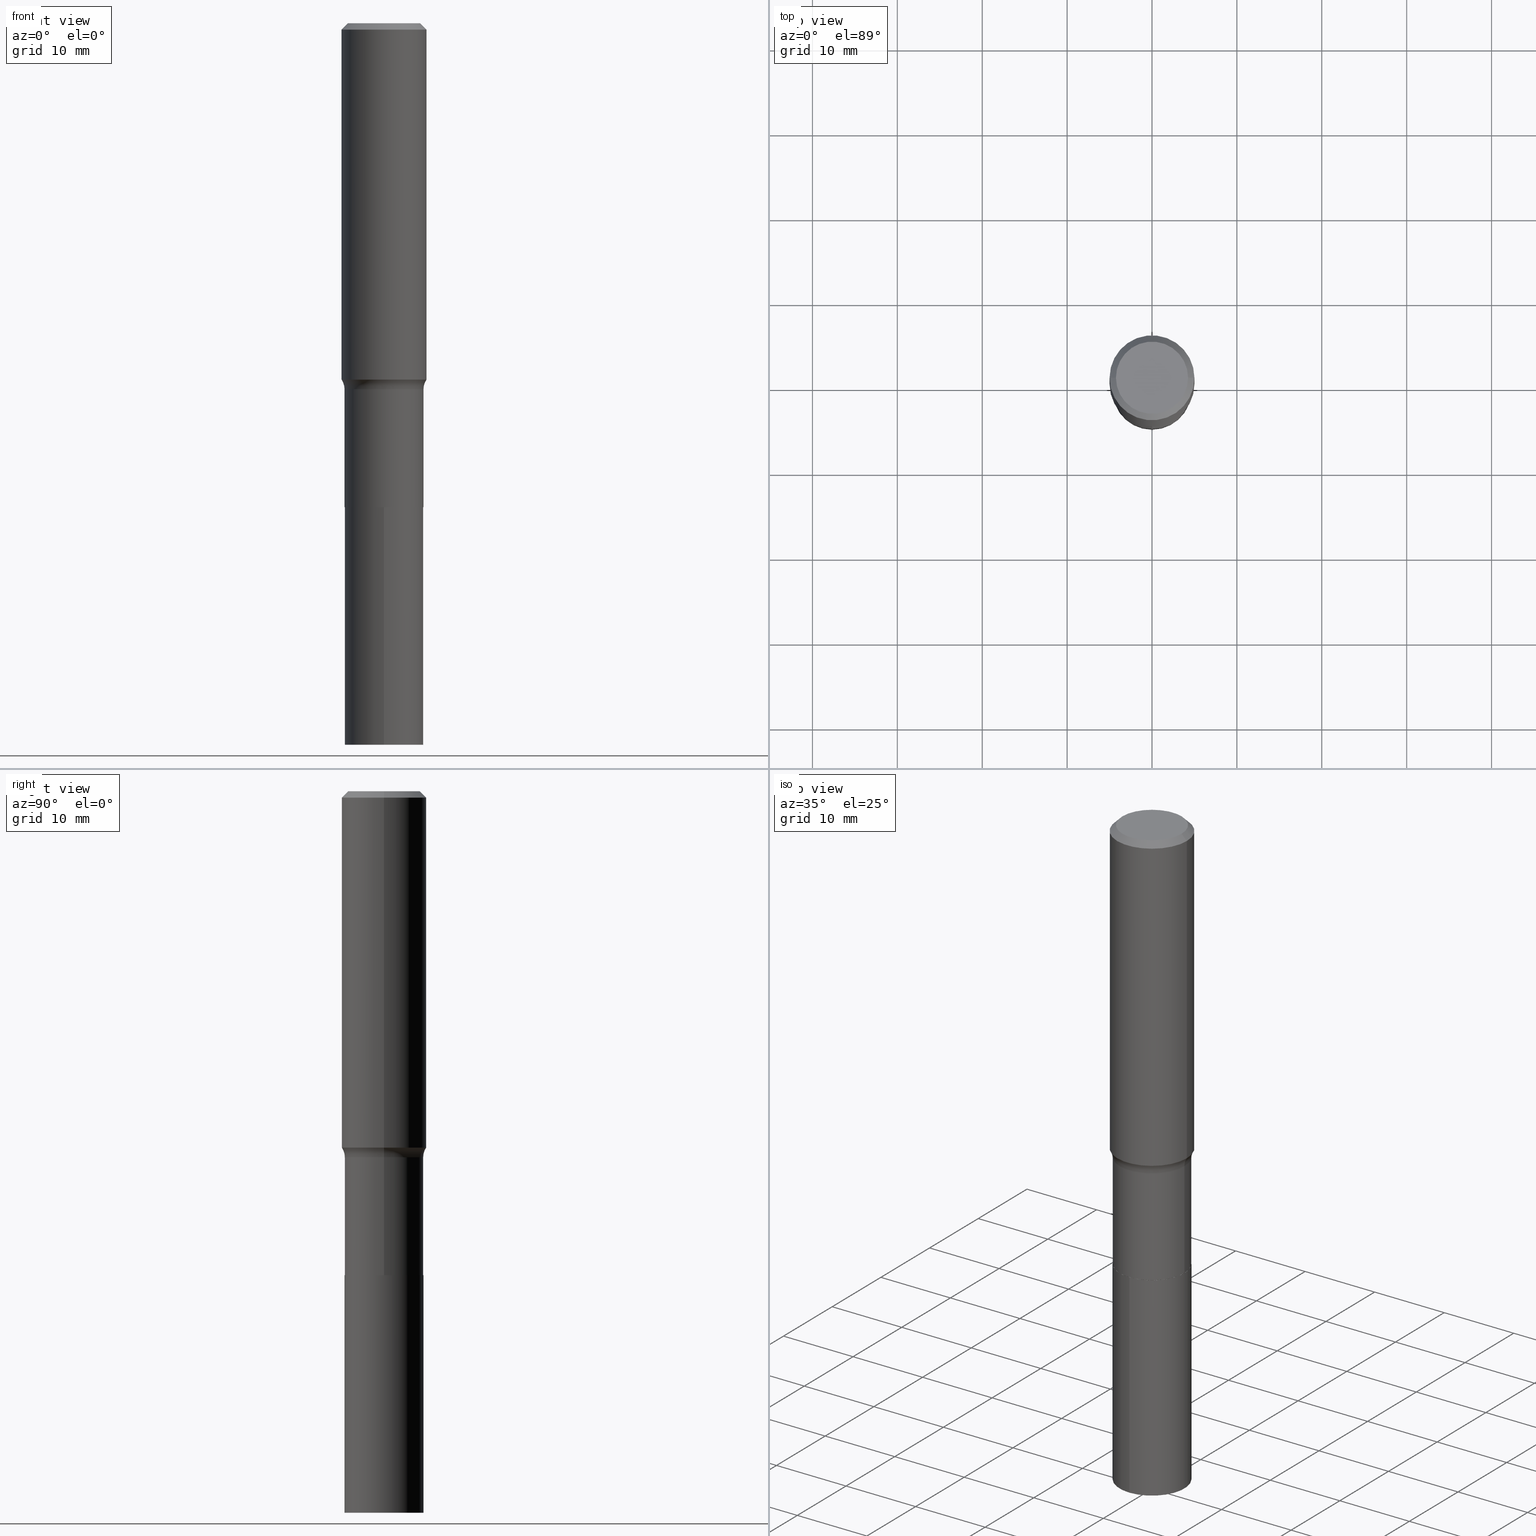
[diagram: canonical four-view strip — front | top / right | iso, engineering-drawing reading convention]
A machine part, canonical four-view strip (front | top / right | iso — engineering-drawing reading convention). The complete STEP part file that produces these views, byte-faithful:
ISO-10303-21;
HEADER;
FILE_DESCRIPTION (( 'STEP AP203' ),
    '1' );
FILE_NAME ('67770.STEP',
    '2024-04-19T16:23:47',
    ( '' ),
    ( '' ),
    'SwSTEP 2.0',
    'SolidWorks 2023',
    '' );
FILE_SCHEMA (( 'CONFIG_CONTROL_DESIGN' ));
ENDSEC;

DATA;
#1 = ADVANCED_FACE ( 'NONE', ( #424 ), #235, .T. ) ;
#2 = CC_DESIGN_PERSON_AND_ORGANIZATION_ASSIGNMENT ( #184, #268, ( #293 ) ) ;
#3 = ORIENTED_EDGE ( 'NONE', *, *, #71, .F. ) ;
#4 = ORIENTED_EDGE ( 'NONE', *, *, #312, .F. ) ;
#5 = APPROVAL_ROLE ( '' ) ;
#6 = AXIS2_PLACEMENT_3D ( 'NONE', #60, #119, #260 ) ;
#7 = VECTOR ( 'NONE', #77, 39.37007874015748143 ) ;
#8 = APPROVAL_PERSON_ORGANIZATION ( #334, #160, #407 ) ;
#9 = DIRECTION ( 'NONE',  ( -6.982962677686264344E-15, -1.000000000000000000, 2.984810700534567995E-15 ) ) ;
#10 = LINE ( 'NONE', #20, #75 ) ;
#11 = ORIENTED_EDGE ( 'NONE', *, *, #159, .F. ) ;
#12 = APPROVAL_STATUS ( 'not_yet_approved' ) ;
#13 = DIRECTION ( 'NONE',  ( -6.982962677686264344E-15, -1.000000000000000000, 2.984810700534567995E-15 ) ) ;
#14 = ORIENTED_EDGE ( 'NONE', *, *, #426, .F. ) ;
#15 = CIRCLE ( 'NONE', #283, 0.1968500000000000250 ) ;
#16 = CIRCLE ( 'NONE', #211, 0.1830499999999999905 ) ;
#17 = DIRECTION ( 'NONE',  ( -2.445468806185136597E-29, 3.491481338843145583E-15, 1.000000000000000000 ) ) ;
#18 = CARTESIAN_POINT ( 'NONE',  ( 5.488854735482538769E-29, -7.836629865033439543E-15, -2.244499999999999940 ) ) ;
#19 = EDGE_LOOP ( 'NONE', ( #444, #307, #166, #54 ) ) ;
#20 = CARTESIAN_POINT ( 'NONE',  ( -0.1968500000000001082, 1.398703375343757985E-15, -9.682923725166787881E-30 ) ) ;
#21 = EDGE_CURVE ( 'NONE', #339, #305, #265, .T. ) ;
#22 = AXIS2_PLACEMENT_3D ( 'NONE', #357, #430, #216 ) ;
#23 = EDGE_LOOP ( 'NONE', ( #123, #423 ) ) ;
#24 = EDGE_CURVE ( 'NONE', #389, #305, #15, .T. ) ;
#25 = CARTESIAN_POINT ( 'NONE',  ( 0.1830499999999999905, -1.278231318150470864E-15, 8.925841588094459454E-30 ) ) ;
#26 = EDGE_LOOP ( 'NONE', ( #87, #164, #370, #49 ) ) ;
#27 = LINE ( 'NONE', #416, #150 ) ;
#28 = PLANE ( 'NONE',  #224 ) ;
#29 = ORIENTED_EDGE ( 'NONE', *, *, #104, .F. ) ;
#30 = DIRECTION ( 'NONE',  ( -2.445468806185136877E-29, 3.491481338843145188E-15, 1.000000000000000000 ) ) ;
#31 = COORDINATED_UNIVERSAL_TIME_OFFSET ( 5, 0, .BEHIND. ) ;
#32 = APPLICATION_PROTOCOL_DEFINITION ( 'international standard', 'config_control_design', 1994, #107 ) ;
#33 = AXIS2_PLACEMENT_3D ( 'NONE', #86, #318, #315 ) ;
#34 = DIRECTION ( 'NONE',  ( -2.445425660691205372E-29, 3.491543125646143900E-15, 1.000000000000000000 ) ) ;
#35 = LINE ( 'NONE', #465, #47 ) ;
#36 = CARTESIAN_POINT ( 'NONE',  ( -0.1830500000000000183, -5.580362944783206907E-15, -2.243999999999999773 ) ) ;
#37 = ORIENTED_EDGE ( 'NONE', *, *, #365, .T. ) ;
#38 = DIRECTION ( 'NONE',  ( -2.445468806185136597E-29, 3.491481338843145583E-15, 1.000000000000000000 ) ) ;
#39 = DIRECTION ( 'NONE',  ( -6.982962677686264344E-15, -1.000000000000000000, 2.984810700534567995E-15 ) ) ;
#40 = SECURITY_CLASSIFICATION_LEVEL ( 'unclassified' ) ;
#41 = AXIS2_PLACEMENT_3D ( 'NONE', #179, #101, #147 ) ;
#42 = ADVANCED_FACE ( 'NONE', ( #152 ), #227, .F. ) ;
#43 = VERTEX_POINT ( 'NONE', #36 ) ;
#44 = DATE_AND_TIME ( #461, #112 ) ;
#45 = COORDINATED_UNIVERSAL_TIME_OFFSET ( 5, 0, .BEHIND. ) ;
#46 = CLOSED_SHELL ( 'NONE', ( #225, #42, #311, #232 ) ) ;
#47 = VECTOR ( 'NONE', #287, 39.37007874015748854 ) ;
#48 = PRODUCT_DEFINITION_FORMATION_WITH_SPECIFIED_SOURCE ( 'ANY', '', #117, .NOT_KNOWN. ) ;
#49 = ORIENTED_EDGE ( 'NONE', *, *, #343, .T. ) ;
#50 = CARTESIAN_POINT ( 'NONE',  ( 0.1968500000000001915, -7.144907158398071295E-15, -1.652682742737339394 ) ) ;
#51 = FACE_OUTER_BOUND ( 'NONE', #355, .T. ) ;
#52 = DIRECTION ( 'NONE',  ( 1.000000000000000000, -6.982962677686267499E-15, 4.876294436782262290E-29 ) ) ;
#53 =( LENGTH_UNIT ( ) NAMED_UNIT ( * ) SI_UNIT ( $, .METRE. ) );
#54 = ORIENTED_EDGE ( 'NONE', *, *, #263, .F. ) ;
#55 = LINE ( 'NONE', #120, #7 ) ;
#56 = EDGE_CURVE ( 'NONE', #348, #288, #218, .T. ) ;
#57 = DIRECTION ( 'NONE',  ( 2.438088387897960049E-29, -3.491481338843145188E-15, -1.000000000000000000 ) ) ;
#58 = AXIS2_PLACEMENT_3D ( 'NONE', #127, #79, #134 ) ;
#59 = EDGE_CURVE ( 'NONE', #43, #462, #386, .T. ) ;
#60 = CARTESIAN_POINT ( 'NONE',  ( 7.220858017463206858E-31, -1.030947152326916240E-16, -0.02952750000000018207 ) ) ;
#61 = CARTESIAN_POINT ( 'NONE',  ( 0.1673224999999999851, -1.300749711163072397E-15, 4.096137381456741925E-18 ) ) ;
#62 = CIRCLE ( 'NONE', #210, 0.1968500000000002192 ) ;
#63 = CONICAL_SURFACE ( 'NONE', #302, 0.1825499999999999623, 0.7853981633975849475 ) ;
#64 = DIRECTION ( 'NONE',  ( -2.445425660691205372E-29, 3.491543125646143900E-15, 1.000000000000000000 ) ) ;
#65 = DIRECTION ( 'NONE',  ( -2.445468806185136597E-29, 3.491481338843145583E-15, 1.000000000000000000 ) ) ;
#66 = CIRCLE ( 'NONE', #41, 0.1673224999999999851 ) ;
#67 = ORIENTED_EDGE ( 'NONE', *, *, #171, .T. ) ;
#68 = DIRECTION ( 'NONE',  ( -2.445425660691205372E-29, 3.491543125646143900E-15, 1.000000000000000000 ) ) ;
#69 = CARTESIAN_POINT ( 'NONE',  ( 7.220858017463206858E-31, -1.030947152326916240E-16, -0.02952750000000018207 ) ) ;
#70 = ORIENTED_EDGE ( 'NONE', *, *, #171, .F. ) ;
#71 = EDGE_CURVE ( 'NONE', #348, #84, #353, .T. ) ;
#72 = PRODUCT_DEFINITION ( 'UNKNOWN', '', #48, #108 ) ;
#73 = DIRECTION ( 'NONE',  ( -2.445468806185136597E-29, 3.491481338843145583E-15, 1.000000000000000000 ) ) ;
#74 = UNCERTAINTY_MEASURE_WITH_UNIT (LENGTH_MEASURE( 1.000000000000000082E-05 ), #350, 'distance_accuracy_value', 'NONE');
#75 = VECTOR ( 'NONE', #415, 39.37007874015748143 ) ;
#76 = DIRECTION ( 'NONE',  ( 1.000000000000000000, 0.000000000000000000, 0.000000000000000000 ) ) ;
#77 = DIRECTION ( 'NONE',  ( -2.445468806185136877E-29, 3.491481338843145188E-15, 1.000000000000000000 ) ) ;
#78 = EDGE_LOOP ( 'NONE', ( #400, #413, #445, #198 ) ) ;
#79 = DIRECTION ( 'NONE',  ( -2.445468806185136597E-29, 3.491481338843145583E-15, 1.000000000000000000 ) ) ;
#80 = VECTOR ( 'NONE', #290, 39.37007874015748143 ) ;
#81 = ORIENTED_EDGE ( 'NONE', *, *, #426, .T. ) ;
#82 = DIRECTION ( 'NONE',  ( 1.000000000000000000, -6.982962677686267499E-15, 4.883557194083112901E-29 ) ) ;
#83 = EDGE_CURVE ( 'NONE', #243, #233, #301, .T. ) ;
#84 = VERTEX_POINT ( 'NONE', #276 ) ;
#85 = CC_DESIGN_PERSON_AND_ORGANIZATION_ASSIGNMENT ( #405, #228, ( #48 ) ) ;
#86 = CARTESIAN_POINT ( 'NONE',  ( 7.220858017463206858E-31, -1.030947152326916240E-16, -0.02952750000000018207 ) ) ;
#87 = ORIENTED_EDGE ( 'NONE', *, *, #356, .F. ) ;
#88 = DIRECTION ( 'NONE',  ( -6.982962677686264344E-15, -1.000000000000000000, 2.984810700534567995E-15 ) ) ;
#89 = DIRECTION ( 'NONE',  ( -2.445468806185136597E-29, 3.491481338843145583E-15, 1.000000000000000000 ) ) ;
#90 = FACE_OUTER_BOUND ( 'NONE', #190, .T. ) ;
#91 = DIRECTION ( 'NONE',  ( 1.000000000000000000, -6.982962677686264344E-15, 0.000000000000000000 ) ) ;
#92 = ORIENTED_EDGE ( 'NONE', *, *, #459, .T. ) ;
#93 = CARTESIAN_POINT ( 'NONE',  ( 0.000000000000000000, 0.000000000000000000, 0.000000000000000000 ) ) ;
#94 = AXIS2_PLACEMENT_3D ( 'NONE', #432, #437, #295 ) ;
#95 = ORGANIZATION ( 'UNSPECIFIED', 'UNSPECIFIED', '' ) ;
#96 = FACE_OUTER_BOUND ( 'NONE', #278, .T. ) ;
#97 = COORDINATED_UNIVERSAL_TIME_OFFSET ( 5, 0, .BEHIND. ) ;
#98 = DIRECTION ( 'NONE',  ( -1.000000000000000000, 7.105427357601001859E-15, 0.000000000000000000 ) ) ;
#99 = DIRECTION ( 'NONE',  ( -2.445425660691205372E-29, 3.491543125646143900E-15, 1.000000000000000000 ) ) ;
#100 = AXIS2_PLACEMENT_3D ( 'NONE', #367, #215, #182 ) ;
#101 = DIRECTION ( 'NONE',  ( -2.445468806185136597E-29, 3.491481338843145583E-15, 1.000000000000000000 ) ) ;
#102 = ADVANCED_FACE ( 'NONE', ( #135 ), #448, .T. ) ;
#103 = DIRECTION ( 'NONE',  ( -2.445425660691205372E-29, 3.491543125646143900E-15, 1.000000000000000000 ) ) ;
#104 = EDGE_CURVE ( 'NONE', #84, #348, #442, .T. ) ;
#105 = CARTESIAN_POINT ( 'NONE',  ( 0.1830499999999999350, -7.205370038970595453E-15, -1.697599999999999998 ) ) ;
#106 = APPROVAL_STATUS ( 'not_yet_approved' ) ;
#107 = APPLICATION_CONTEXT ( 'configuration controlled 3d designs of mechanical parts and assemblies' ) ;
#108 = DESIGN_CONTEXT ( 'detailed design', #107, 'design' ) ;
#109 = DIRECTION ( 'NONE',  ( 0.7071067811865455743, -7.319954787623248157E-15, -0.7071067811865493491 ) ) ;
#110 = DIRECTION ( 'NONE',  ( 1.000000000000000000, -6.982962677686267499E-15, 4.883557194083112901E-29 ) ) ;
#111 = AXIS2_PLACEMENT_3D ( 'NONE', #323, #64, #418 ) ;
#112 = LOCAL_TIME ( 12, 23, 47.00000000000000000, #214 ) ;
#113 = CYLINDRICAL_SURFACE ( 'NONE', #58, 0.1830499999999999905 ) ;
#114 = ADVANCED_FACE ( 'NONE', ( #191 ), #163, .F. ) ;
#115 = EDGE_LOOP ( 'NONE', ( #29, #3 ) ) ;
#116 = APPROVAL_DATE_TIME ( #254, #250 ) ;
#117 = PRODUCT ( '67770', '67770', '', ( #199 ) ) ;
#118 = DIRECTION ( 'NONE',  ( 0.000000000000000000, 0.000000000000000000, 1.000000000000000000 ) ) ;
#119 = DIRECTION ( 'NONE',  ( 2.445468806185136597E-29, -3.491481338843145583E-15, -1.000000000000000000 ) ) ;
#120 = CARTESIAN_POINT ( 'NONE',  ( -0.1830499999999999905, 1.300648477808863323E-15, -9.004110682711603988E-30 ) ) ;
#121 = DATE_AND_TIME ( #197, #258 ) ;
#122 = CLOSED_SHELL ( 'NONE', ( #460, #1, #148, #114, #282, #446, #425, #102, #186, #332, #188, #264 ) ) ;
#123 = ORIENTED_EDGE ( 'NONE', *, *, #395, .T. ) ;
#124 = CIRCLE ( 'NONE', #354, 0.1830499999999999905 ) ;
#125 = VERTEX_POINT ( 'NONE', #151 ) ;
#126 = CARTESIAN_POINT ( 'NONE',  ( 0.000000000000000000, 0.000000000000000000, 0.000000000000000000 ) ) ;
#127 = CARTESIAN_POINT ( 'NONE',  ( 0.000000000000000000, 0.000000000000000000, 0.000000000000000000 ) ) ;
#128 = FACE_OUTER_BOUND ( 'NONE', #201, .T. ) ;
#129 = CIRCLE ( 'NONE', #450, 0.1830500000000000183 ) ;
#130 = PRODUCT_RELATED_PRODUCT_CATEGORY ( 'detail', '', ( #117 ) ) ;
#131 = AXIS2_PLACEMENT_3D ( 'NONE', #169, #240, #52 ) ;
#132 = EDGE_CURVE ( 'NONE', #174, #458, #62, .T. ) ;
#133 = EDGE_LOOP ( 'NONE', ( #14, #382, #219, #153 ) ) ;
#134 = DIRECTION ( 'NONE',  ( 1.000000000000000000, -6.982962677686265922E-15, 4.876176775795935232E-29 ) ) ;
#135 = FACE_OUTER_BOUND ( 'NONE', #189, .T. ) ;
#136 = DIRECTION ( 'NONE',  ( 1.000000000000000000, -6.982962677686265922E-15, 4.876176775795935232E-29 ) ) ;
#137 = CIRCLE ( 'NONE', #245, 0.1830499999999999350 ) ;
#138 = ORIENTED_EDGE ( 'NONE', *, *, #440, .F. ) ;
#139 = APPROVAL_STATUS ( 'not_yet_approved' ) ;
#140 = DIRECTION ( 'NONE',  ( -1.000000000000000000, 6.982962677686265922E-15, -4.876176775795935793E-29 ) ) ;
#141 = FACE_OUTER_BOUND ( 'NONE', #78, .T. ) ;
#142 = ORIENTED_EDGE ( 'NONE', *, *, #273, .T. ) ;
#143 = DIRECTION ( 'NONE',  ( 1.000000000000000000, -6.982962677686262766E-15, 0.000000000000000000 ) ) ;
#144 = VERTEX_POINT ( 'NONE', #300 ) ;
#145 = LINE ( 'NONE', #222, #80 ) ;
#146 = DIRECTION ( 'NONE',  ( -6.982962677686264344E-15, -1.000000000000000000, 2.984810700534567995E-15 ) ) ;
#147 = DIRECTION ( 'NONE',  ( 1.000000000000000000, -6.982962677686267499E-15, 4.876294436782262290E-29 ) ) ;
#148 = ADVANCED_FACE ( 'NONE', ( #96 ), #346, .T. ) ;
#149 = CARTESIAN_POINT ( 'NONE',  ( 4.151427845379887216E-29, -5.927138720820123997E-15, -1.697599999999999998 ) ) ;
#150 = VECTOR ( 'NONE', #209, 39.37007874015748143 ) ;
#151 = CARTESIAN_POINT ( 'NONE',  ( 0.1825499999999999623, -9.111369701845066414E-15, -2.244499999999999940 ) ) ;
#152 = FACE_OUTER_BOUND ( 'NONE', #115, .T. ) ;
#153 = ORIENTED_EDGE ( 'NONE', *, *, #213, .F. ) ;
#154 = ORIENTED_EDGE ( 'NONE', *, *, #194, .T. ) ;
#155 = AXIS2_PLACEMENT_3D ( 'NONE', #402, #68, #39 ) ;
#156 = MANIFOLD_SOLID_BREP ( 'Body-Move/Copy2[2]', #122 ) ;
#157 = AXIS2_PLACEMENT_3D ( 'NONE', #435, #257, #9 ) ;
#158 = PERSON_AND_ORGANIZATION ( #241, #95 ) ;
#159 = EDGE_CURVE ( 'NONE', #462, #43, #129, .T. ) ;
#160 = APPROVAL ( #12, 'UNSPECIFIED' ) ;
#161 =( NAMED_UNIT ( * ) PLANE_ANGLE_UNIT ( ) SI_UNIT ( $, .RADIAN. ) );
#162 = ORIENTED_EDGE ( 'NONE', *, *, #104, .T. ) ;
#163 = TOROIDAL_SURFACE ( 'NONE', #266, 0.2630499999999999505, 0.07999999999999996003 ) ;
#164 = ORIENTED_EDGE ( 'NONE', *, *, #132, .F. ) ;
#165 = DIRECTION ( 'NONE',  ( -2.445468806185136597E-29, 3.491481338843145583E-15, 1.000000000000000000 ) ) ;
#166 = ORIENTED_EDGE ( 'NONE', *, *, #83, .T. ) ;
#167 = APPROVAL_ROLE ( '' ) ;
#168 = VECTOR ( 'NONE', #294, 39.37007874015748143 ) ;
#169 = CARTESIAN_POINT ( 'NONE',  ( -1.001697619218021790E-46, 1.430158722866389718E-32, 4.096137381448108366E-18 ) ) ;
#170 = ORIENTED_EDGE ( 'NONE', *, *, #275, .F. ) ;
#171 = EDGE_CURVE ( 'NONE', #414, #125, #412, .T. ) ;
#172 = CC_DESIGN_DATE_AND_TIME_ASSIGNMENT ( #195, #374, ( #72 ) ) ;
#173 = DATE_TIME_ROLE ( 'classification_date' ) ;
#174 = VERTEX_POINT ( 'NONE', #50 ) ;
#175 = ORIENTED_EDGE ( 'NONE', *, *, #459, .F. ) ;
#176 = CARTESIAN_POINT ( 'NONE',  ( 0.1968500000000000250, -1.477690918335233294E-15, -0.02952750000000018207 ) ) ;
#177 = AXIS2_PLACEMENT_3D ( 'NONE', #289, #456, #136 ) ;
#178 = LOCAL_TIME ( 12, 23, 47.00000000000000000, #375 ) ;
#179 = CARTESIAN_POINT ( 'NONE',  ( -1.001697619218021790E-46, 1.430158722866389718E-32, 4.096137381448108366E-18 ) ) ;
#180 = CYLINDRICAL_SURFACE ( 'NONE', #157, 0.1830499999999999905 ) ;
#181 = FACE_OUTER_BOUND ( 'NONE', #322, .T. ) ;
#182 = DIRECTION ( 'NONE',  ( 1.000000000000000000, -6.982962677686264344E-15, 0.000000000000000000 ) ) ;
#183 = LENGTH_MEASURE_WITH_UNIT ( LENGTH_MEASURE( 0.02539999999999999897 ), #53 );
#184 = PERSON_AND_ORGANIZATION ( #241, #95 ) ;
#185 = DIRECTION ( 'NONE',  ( 1.000000000000000000, -6.982962677686264344E-15, 0.000000000000000000 ) ) ;
#186 = ADVANCED_FACE ( 'NONE', ( #128 ), #420, .T. ) ;
#187 = APPROVAL_DATE_TIME ( #44, #249 ) ;
#188 = ADVANCED_FACE ( 'NONE', ( #51 ), #200, .F. ) ;
#189 = EDGE_LOOP ( 'NONE', ( #454, #397, #345, #331 ) ) ;
#190 = EDGE_LOOP ( 'NONE', ( #142, #81 ) ) ;
#191 = FACE_OUTER_BOUND ( 'NONE', #19, .T. ) ;
#192 = CIRCLE ( 'NONE', #131, 0.1673224999999999851 ) ;
#193 = CC_DESIGN_APPROVAL ( #160, ( #48 ) ) ;
#194 = EDGE_CURVE ( 'NONE', #125, #462, #145, .T. ) ;
#195 = DATE_AND_TIME ( #341, #451 ) ;
#196 = ORIENTED_EDGE ( 'NONE', *, *, #59, .F. ) ;
#197 = CALENDAR_DATE ( 2024, 19, 4 ) ;
#198 = ORIENTED_EDGE ( 'NONE', *, *, #83, .F. ) ;
#199 = MECHANICAL_CONTEXT ( 'NONE', #207, 'mechanical' ) ;
#200 = PLANE ( 'NONE',  #338 ) ;
#201 = EDGE_LOOP ( 'NONE', ( #438, #274, #352, #340 ) ) ;
#202 = CARTESIAN_POINT ( 'NONE',  ( 5.488854735482538769E-29, -7.836629865033439543E-15, -2.244499999999999940 ) ) ;
#203 = AXIS2_PLACEMENT_3D ( 'NONE', #208, #234, #239 ) ;
#204 = DIRECTION ( 'NONE',  ( -2.445468806185136597E-29, 3.491481338843145583E-15, 1.000000000000000000 ) ) ;
#205 = CARTESIAN_POINT ( 'NONE',  ( 5.488854735482538769E-29, -7.836629865033439543E-15, -2.244499999999999940 ) ) ;
#206 = PLANE ( 'NONE',  #284 ) ;
#207 = APPLICATION_CONTEXT ( 'configuration controlled 3d designs of mechanical parts and assemblies' ) ;
#208 = CARTESIAN_POINT ( 'NONE',  ( 7.220858017463206858E-31, -1.030947152326916240E-16, -0.02952750000000018207 ) ) ;
#209 = DIRECTION ( 'NONE',  ( -2.445425660691205372E-29, 3.491543125646143900E-15, 1.000000000000000000 ) ) ;
#210 = AXIS2_PLACEMENT_3D ( 'NONE', #366, #38, #466 ) ;
#211 = AXIS2_PLACEMENT_3D ( 'NONE', #202, #99, #13 ) ;
#212 = CC_DESIGN_PERSON_AND_ORGANIZATION_ASSIGNMENT ( #303, #369, ( #48 ) ) ;
#213 = EDGE_CURVE ( 'NONE', #144, #389, #35, .T. ) ;
#214 = COORDINATED_UNIVERSAL_TIME_OFFSET ( 5, 0, .BEHIND. ) ;
#215 = DIRECTION ( 'NONE',  ( -2.445468806185136597E-29, 3.491481338843145583E-15, 1.000000000000000000 ) ) ;
#216 = DIRECTION ( 'NONE',  ( 1.000000000000000000, -6.982962677686264344E-15, 0.000000000000000000 ) ) ;
#217 = CC_DESIGN_APPROVAL ( #250, ( #72 ) ) ;
#218 = LINE ( 'NONE', #220, #308 ) ;
#219 = ORIENTED_EDGE ( 'NONE', *, *, #411, .T. ) ;
#220 = CARTESIAN_POINT ( 'NONE',  ( 1.300648477808917754E-15, 0.1830499999999921634, -2.244500000000000384 ) ) ;
#221 = PRODUCT_DEFINITION_SHAPE ( 'NONE', 'NONE',  #72 ) ;
#222 = CARTESIAN_POINT ( 'NONE',  ( 0.1825499999999999623, -9.111369701845066414E-15, -2.244499999999999940 ) ) ;
#223 = APPROVAL_DATE_TIME ( #121, #160 ) ;
#224 = AXIS2_PLACEMENT_3D ( 'NONE', #251, #325, #394 ) ;
#225 = ADVANCED_FACE ( 'NONE', ( #431 ), #180, .T. ) ;
#226 = FACE_OUTER_BOUND ( 'NONE', #379, .T. ) ;
#227 = PLANE ( 'NONE',  #94 ) ;
#228 = PERSON_AND_ORGANIZATION_ROLE ( 'creator' ) ;
#229 = EDGE_LOOP ( 'NONE', ( #441, #408, #391, #248 ) ) ;
#230 = VERTEX_POINT ( 'NONE', #433 ) ;
#231 = DIRECTION ( 'NONE',  ( -2.445468806185136597E-29, 3.491481338843145583E-15, 1.000000000000000000 ) ) ;
#232 = ADVANCED_FACE ( 'NONE', ( #362 ), #28, .F. ) ;
#233 = VERTEX_POINT ( 'NONE', #105 ) ;
#234 = DIRECTION ( 'NONE',  ( 2.445468806185136597E-29, -3.491481338843145583E-15, -1.000000000000000000 ) ) ;
#235 = CONICAL_SURFACE ( 'NONE', #6, 0.1968500000000000250, 0.7853981633974456145 ) ;
#236 = PERSON_AND_ORGANIZATION_ROLE ( 'creator' ) ;
#237 = AXIS2_PLACEMENT_3D ( 'NONE', #421, #65, #185 ) ;
#238 = DIRECTION ( 'NONE',  ( -2.445425660691205372E-29, 3.491543125646143900E-15, 1.000000000000000000 ) ) ;
#239 = DIRECTION ( 'NONE',  ( -1.000000000000000000, 6.982962677686265922E-15, 0.000000000000000000 ) ) ;
#240 = DIRECTION ( 'NONE',  ( -2.445468806185136597E-29, 3.491481338843145583E-15, 1.000000000000000000 ) ) ;
#241 = PERSON ( 'UNSPECIFIED', 'UNSPECIFIED', 'UNSPECIFIED', ('UNSPECIFIED'), ('UNSPECIFIED'), ('UNSPECIFIED') ) ;
#242 = ORIENTED_EDGE ( 'NONE', *, *, #194, .F. ) ;
#243 = VERTEX_POINT ( 'NONE', #252 ) ;
#244 = CARTESIAN_POINT ( 'NONE',  ( -5.008488096090108951E-47, 7.150793614331948590E-33, 2.048068690724054183E-18 ) ) ;
#245 = AXIS2_PLACEMENT_3D ( 'NONE', #349, #204, #388 ) ;
#246 = DIRECTION ( 'NONE',  ( 1.000000000000000000, -6.982962677686265922E-15, 0.000000000000000000 ) ) ;
#247 = CARTESIAN_POINT ( 'NONE',  ( -0.1825499999999999623, -6.536884873729265523E-15, -2.244499999999999940 ) ) ;
#248 = ORIENTED_EDGE ( 'NONE', *, *, #297, .F. ) ;
#249 = APPROVAL ( #106, 'UNSPECIFIED' ) ;
#250 = APPROVAL ( #139, 'UNSPECIFIED' ) ;
#251 = CARTESIAN_POINT ( 'NONE',  ( 5.488854735482538769E-29, -7.836629865033439543E-15, -2.244499999999999940 ) ) ;
#252 = CARTESIAN_POINT ( 'NONE',  ( -0.1830499999999999350, -5.580362944783206907E-15, -1.697599999999999998 ) ) ;
#253 = ORIENTED_EDGE ( 'NONE', *, *, #343, .F. ) ;
#254 = DATE_AND_TIME ( #390, #429 ) ;
#255 = CARTESIAN_POINT ( 'NONE',  ( -0.1825499999999999623, -6.539534100903376724E-15, -2.244499999999999940 ) ) ;
#256 = AXIS2_PLACEMENT_3D ( 'NONE', #399, #328, #143 ) ;
#257 = DIRECTION ( 'NONE',  ( -2.445425660691205372E-29, 3.491543125646143900E-15, 1.000000000000000000 ) ) ;
#258 = LOCAL_TIME ( 12, 23, 47.00000000000000000, #31 ) ;
#259 = CARTESIAN_POINT ( 'NONE',  ( 4.151427845379887216E-29, -5.927138720820123997E-15, -1.697599999999999998 ) ) ;
#260 = DIRECTION ( 'NONE',  ( -1.000000000000000000, 6.982962677686265922E-15, 0.000000000000000000 ) ) ;
#261 = ORIENTED_EDGE ( 'NONE', *, *, #159, .T. ) ;
#262 = ORIENTED_EDGE ( 'NONE', *, *, #395, .F. ) ;
#263 = EDGE_CURVE ( 'NONE', #174, #233, #271, .T. ) ;
#264 = ADVANCED_FACE ( 'NONE', ( #285 ), #292, .T. ) ;
#265 = LINE ( 'NONE', #335, #319 ) ;
#266 = AXIS2_PLACEMENT_3D ( 'NONE', #259, #306, #110 ) ;
#267 = DIRECTION ( 'NONE',  ( -2.445468806185136597E-29, 3.491481338843145583E-15, 1.000000000000000000 ) ) ;
#268 = PERSON_AND_ORGANIZATION_ROLE ( 'classification_officer' ) ;
#269 = ORIENTED_EDGE ( 'NONE', *, *, #275, .T. ) ;
#270 = CARTESIAN_POINT ( 'NONE',  ( 4.151427845379887216E-29, -5.927138720820123997E-15, -1.697599999999999998 ) ) ;
#271 = CIRCLE ( 'NONE', #256, 0.07999999999999996003 ) ;
#272 = ORIENTED_EDGE ( 'NONE', *, *, #298, .F. ) ;
#273 = EDGE_CURVE ( 'NONE', #144, #339, #66, .T. ) ;
#274 = ORIENTED_EDGE ( 'NONE', *, *, #273, .F. ) ;
#275 = EDGE_CURVE ( 'NONE', #414, #43, #436, .T. ) ;
#276 = CARTESIAN_POINT ( 'NONE',  ( -1.278231318150389020E-15, -0.1830500000000116478, -3.346499999999999364 ) ) ;
#277 = CARTESIAN_POINT ( 'NONE',  ( 1.300648477808931165E-15, 0.1830499999999883054, -3.346500000000000696 ) ) ;
#278 = EDGE_LOOP ( 'NONE', ( #383, #351, #377, #138 ) ) ;
#279 = CARTESIAN_POINT ( 'NONE',  ( -0.1968500000000001915, -4.371607579951768743E-15, -1.652682742737339394 ) ) ;
#280 = DIRECTION ( 'NONE',  ( -2.445468806185136597E-29, 3.491481338843145583E-15, 1.000000000000000000 ) ) ;
#281 = CARTESIAN_POINT ( 'NONE',  ( -0.1968500000000000250, -1.537999459920351518E-15, -0.02952750000000018207 ) ) ;
#282 = ADVANCED_FACE ( 'NONE', ( #181 ), #113, .T. ) ;
#283 = AXIS2_PLACEMENT_3D ( 'NONE', #69, #73, #468 ) ;
#284 = AXIS2_PLACEMENT_3D ( 'NONE', #244, #57, #140 ) ;
#285 = FACE_OUTER_BOUND ( 'NONE', #296, .T. ) ;
#286 = CARTESIAN_POINT ( 'NONE',  ( 5.488854735482538769E-29, -7.836629865033439543E-15, -2.244499999999999940 ) ) ;
#287 = DIRECTION ( 'NONE',  ( -0.7071067811865455743, 2.468850131082236945E-15, -0.7071067811865493491 ) ) ;
#288 = VERTEX_POINT ( 'NONE', #452 ) ;
#289 = CARTESIAN_POINT ( 'NONE',  ( 0.000000000000000000, 0.000000000000000000, 0.000000000000000000 ) ) ;
#290 = DIRECTION ( 'NONE',  ( 0.7071067811866441621, -2.468850131083269169E-15, 0.7071067811864508723 ) ) ;
#291 = DIRECTION ( 'NONE',  ( 1.000000000000000000, -6.982962677686264344E-15, 0.000000000000000000 ) ) ;
#292 = CONICAL_SURFACE ( 'NONE', #22, 0.1825499999999999623, 0.7853981633975849475 ) ;
#293 = SECURITY_CLASSIFICATION ( '', '', #40 ) ;
#294 = DIRECTION ( 'NONE',  ( -2.445468806185136877E-29, 3.491481338843145188E-15, 1.000000000000000000 ) ) ;
#295 = DIRECTION ( 'NONE',  ( -6.982962677686265922E-15, -1.000000000000000000, 3.491543125646143900E-15 ) ) ;
#296 = EDGE_LOOP ( 'NONE', ( #170, #67, #154, #196 ) ) ;
#297 = EDGE_CURVE ( 'NONE', #288, #230, #124, .T. ) ;
#298 = EDGE_CURVE ( 'NONE', #462, #233, #384, .T. ) ;
#299 = CARTESIAN_POINT ( 'NONE',  ( 0.000000000000000000, 0.000000000000000000, 0.000000000000000000 ) ) ;
#300 = CARTESIAN_POINT ( 'NONE',  ( -0.1673224999999999851, 1.219954130253505263E-15, 4.096137381439757534E-18 ) ) ;
#301 = CIRCLE ( 'NONE', #371, 0.1830499999999999350 ) ;
#302 = AXIS2_PLACEMENT_3D ( 'NONE', #329, #267, #291 ) ;
#303 = PERSON_AND_ORGANIZATION ( #241, #95 ) ;
#304 = SHAPE_DEFINITION_REPRESENTATION ( #221, #336 ) ;
#305 = VERTEX_POINT ( 'NONE', #176 ) ;
#306 = DIRECTION ( 'NONE',  ( -2.445468806185136597E-29, 3.491481338843145583E-15, 1.000000000000000000 ) ) ;
#307 = ORIENTED_EDGE ( 'NONE', *, *, #356, .T. ) ;
#308 = VECTOR ( 'NONE', #103, 39.37007874015748143 ) ;
#309 = DIRECTION ( 'NONE',  ( 1.000000000000000000, -6.982962677686266711E-15, 4.876176775795935793E-29 ) ) ;
#310 = CIRCLE ( 'NONE', #326, 0.1968500000000002192 ) ;
#311 = ADVANCED_FACE ( 'NONE', ( #393 ), #455, .T. ) ;
#312 = EDGE_CURVE ( 'NONE', #84, #230, #27, .T. ) ;
#313 = EDGE_LOOP ( 'NONE', ( #162, #406, #262, #4 ) ) ;
#314 = DIRECTION ( 'NONE',  ( -2.445468806185136597E-29, 3.491481338843145583E-15, 1.000000000000000000 ) ) ;
#315 = DIRECTION ( 'NONE',  ( 1.000000000000000000, -6.982962677686265922E-15, 0.000000000000000000 ) ) ;
#316 = PERSON_AND_ORGANIZATION ( #241, #95 ) ;
#317 = DIRECTION ( 'NONE',  ( -2.438088387897960049E-29, 3.491481338843145188E-15, 1.000000000000000000 ) ) ;
#318 = DIRECTION ( 'NONE',  ( -2.445468806185136597E-29, 3.491481338843145583E-15, 1.000000000000000000 ) ) ;
#319 = VECTOR ( 'NONE', #109, 39.37007874015748854 ) ;
#320 = CIRCLE ( 'NONE', #392, 0.07999999999999996003 ) ;
#321 = APPROVAL_PERSON_ORGANIZATION ( #434, #249, #5 ) ;
#322 = EDGE_LOOP ( 'NONE', ( #261, #37, #253, #272 ) ) ;
#323 = CARTESIAN_POINT ( 'NONE',  ( 5.488854735482538769E-29, -7.836629865033439543E-15, -2.244499999999999940 ) ) ;
#324 = DIMENSIONAL_EXPONENTS ( 1.000000000000000000, 0.000000000000000000, 0.000000000000000000, 0.000000000000000000, 0.000000000000000000, 0.000000000000000000, 0.000000000000000000 ) ;
#325 = DIRECTION ( 'NONE',  ( 2.445425660691205091E-29, -3.491543125646143900E-15, -1.000000000000000000 ) ) ;
#326 = AXIS2_PLACEMENT_3D ( 'NONE', #449, #280, #246 ) ;
#327 = CC_DESIGN_APPROVAL ( #249, ( #293 ) ) ;
#328 = DIRECTION ( 'NONE',  ( -6.982962677686266711E-15, -1.000000000000000000, 3.491481338843145583E-15 ) ) ;
#329 = CARTESIAN_POINT ( 'NONE',  ( 5.488854735482538769E-29, -7.836629865033439543E-15, -2.244499999999999940 ) ) ;
#330 = CC_DESIGN_PERSON_AND_ORGANIZATION_ASSIGNMENT ( #363, #236, ( #72 ) ) ;
#331 = ORIENTED_EDGE ( 'NONE', *, *, #24, .F. ) ;
#332 = ADVANCED_FACE ( 'NONE', ( #90 ), #206, .F. ) ;
#333 =( GEOMETRIC_REPRESENTATION_CONTEXT ( 3 ) GLOBAL_UNCERTAINTY_ASSIGNED_CONTEXT ( ( #74 ) ) GLOBAL_UNIT_ASSIGNED_CONTEXT ( ( #350, #161, #364 ) ) REPRESENTATION_CONTEXT ( 'NONE', 'WORKASPACE' ) );
#334 = PERSON_AND_ORGANIZATION ( #241, #95 ) ;
#335 = CARTESIAN_POINT ( 'NONE',  ( 0.1968500000000000250, -1.453583746094017706E-15, -0.02952750000000018207 ) ) ;
#336 = ADVANCED_BREP_SHAPE_REPRESENTATION ( '67770', ( #464, #156, #404 ), #333 ) ;
#337 = CALENDAR_DATE ( 2024, 19, 4 ) ;
#338 = AXIS2_PLACEMENT_3D ( 'NONE', #286, #317, #439 ) ;
#339 = VERTEX_POINT ( 'NONE', #61 ) ;
#340 = ORIENTED_EDGE ( 'NONE', *, *, #24, .T. ) ;
#341 = CALENDAR_DATE ( 2024, 19, 4 ) ;
#342 = LINE ( 'NONE', #396, #168 ) ;
#343 = EDGE_CURVE ( 'NONE', #233, #243, #137, .T. ) ;
#344 = EDGE_CURVE ( 'NONE', #458, #174, #310, .T. ) ;
#345 = ORIENTED_EDGE ( 'NONE', *, *, #440, .T. ) ;
#346 = CYLINDRICAL_SURFACE ( 'NONE', #427, 0.1968500000000001082 ) ;
#347 = AXIS2_PLACEMENT_3D ( 'NONE', #270, #447, #82 ) ;
#348 = VERTEX_POINT ( 'NONE', #277 ) ;
#349 = CARTESIAN_POINT ( 'NONE',  ( 4.151427845379887216E-29, -5.927138720820123997E-15, -1.697599999999999998 ) ) ;
#350 =( CONVERSION_BASED_UNIT ( 'INCH', #183 ) LENGTH_UNIT ( ) NAMED_UNIT ( #324 ) );
#351 = ORIENTED_EDGE ( 'NONE', *, *, #380, .T. ) ;
#352 = ORIENTED_EDGE ( 'NONE', *, *, #213, .T. ) ;
#353 = CIRCLE ( 'NONE', #410, 0.1830499999999999905 ) ;
#354 = AXIS2_PLACEMENT_3D ( 'NONE', #18, #238, #88 ) ;
#355 = EDGE_LOOP ( 'NONE', ( #175, #70 ) ) ;
#356 = EDGE_CURVE ( 'NONE', #458, #243, #320, .T. ) ;
#357 = CARTESIAN_POINT ( 'NONE',  ( 5.488854735482538769E-29, -7.836629865033439543E-15, -2.244499999999999940 ) ) ;
#358 = DATE_AND_TIME ( #337, #178 ) ;
#359 = CARTESIAN_POINT ( 'NONE',  ( 8.183713813564248503E-29, -1.168431038949549098E-14, -3.346499999999999808 ) ) ;
#360 = AXIS2_PLACEMENT_3D ( 'NONE', #93, #231, #387 ) ;
#361 = APPROVAL_PERSON_ORGANIZATION ( #316, #250, #167 ) ;
#362 = FACE_OUTER_BOUND ( 'NONE', #23, .T. ) ;
#363 = PERSON_AND_ORGANIZATION ( #241, #95 ) ;
#364 =( NAMED_UNIT ( * ) SI_UNIT ( $, .STERADIAN. ) SOLID_ANGLE_UNIT ( ) );
#365 = EDGE_CURVE ( 'NONE', #43, #243, #55, .T. ) ;
#366 = CARTESIAN_POINT ( 'NONE',  ( 4.041584093884658511E-29, -5.770310955295528109E-15, -1.652682742737339394 ) ) ;
#367 = CARTESIAN_POINT ( 'NONE',  ( 5.487632001079445967E-29, -7.834884124364017250E-15, -2.243999999999999773 ) ) ;
#368 = DIRECTION ( 'NONE',  ( -0.7071067811866441621, 7.493145998870704414E-15, 0.7071067811864508723 ) ) ;
#369 = PERSON_AND_ORGANIZATION_ROLE ( 'design_supplier' ) ;
#370 = ORIENTED_EDGE ( 'NONE', *, *, #263, .T. ) ;
#371 = AXIS2_PLACEMENT_3D ( 'NONE', #149, #89, #385 ) ;
#372 = AXIS2_PLACEMENT_3D ( 'NONE', #205, #165, #419 ) ;
#373 = CC_DESIGN_SECURITY_CLASSIFICATION ( #293, ( #48 ) ) ;
#374 = DATE_TIME_ROLE ( 'creation_date' ) ;
#375 = COORDINATED_UNIVERSAL_TIME_OFFSET ( 5, 0, .BEHIND. ) ;
#376 = CIRCLE ( 'NONE', #33, 0.1968500000000000250 ) ;
#377 = ORIENTED_EDGE ( 'NONE', *, *, #411, .F. ) ;
#378 = CC_DESIGN_PERSON_AND_ORGANIZATION_ASSIGNMENT ( #158, #398, ( #117 ) ) ;
#379 = EDGE_LOOP ( 'NONE', ( #92, #269, #11, #242 ) ) ;
#380 = EDGE_CURVE ( 'NONE', #458, #389, #10, .T. ) ;
#381 = FACE_OUTER_BOUND ( 'NONE', #26, .T. ) ;
#382 = ORIENTED_EDGE ( 'NONE', *, *, #21, .T. ) ;
#383 = ORIENTED_EDGE ( 'NONE', *, *, #132, .T. ) ;
#384 = LINE ( 'NONE', #25, #428 ) ;
#385 = DIRECTION ( 'NONE',  ( 1.000000000000000000, -6.982962677686267499E-15, 0.000000000000000000 ) ) ;
#386 = CIRCLE ( 'NONE', #100, 0.1830500000000000183 ) ;
#387 = DIRECTION ( 'NONE',  ( 1.000000000000000000, -6.982962677686266711E-15, 4.876176775795935793E-29 ) ) ;
#388 = DIRECTION ( 'NONE',  ( 1.000000000000000000, -6.982962677686267499E-15, 0.000000000000000000 ) ) ;
#389 = VERTEX_POINT ( 'NONE', #281 ) ;
#390 = CALENDAR_DATE ( 2024, 19, 4 ) ;
#391 = ORIENTED_EDGE ( 'NONE', *, *, #312, .T. ) ;
#392 = AXIS2_PLACEMENT_3D ( 'NONE', #457, #422, #98 ) ;
#393 = FACE_OUTER_BOUND ( 'NONE', #229, .T. ) ;
#394 = DIRECTION ( 'NONE',  ( 6.982962677686265922E-15, 1.000000000000000000, -3.491543125646143900E-15 ) ) ;
#395 = EDGE_CURVE ( 'NONE', #230, #288, #16, .T. ) ;
#396 = CARTESIAN_POINT ( 'NONE',  ( 0.1968500000000001082, -1.374596203102542397E-15, 9.598753983154305062E-30 ) ) ;
#397 = ORIENTED_EDGE ( 'NONE', *, *, #344, .T. ) ;
#398 = PERSON_AND_ORGANIZATION_ROLE ( 'design_owner' ) ;
#399 = CARTESIAN_POINT ( 'NONE',  ( 0.2630499999999999505, -7.764007053185495528E-15, -1.697599999999999998 ) ) ;
#400 = ORIENTED_EDGE ( 'NONE', *, *, #365, .F. ) ;
#401 = TOROIDAL_SURFACE ( 'NONE', #347, 0.2630499999999999505, 0.07999999999999996003 ) ;
#402 = CARTESIAN_POINT ( 'NONE',  ( 8.183713813564248503E-29, -1.168431038949549098E-14, -3.346499999999999808 ) ) ;
#403 = APPLICATION_PROTOCOL_DEFINITION ( 'international standard', 'config_control_design', 1994, #207 ) ;
#404 = AXIS2_PLACEMENT_3D ( 'NONE', #299, #118, #76 ) ;
#405 = PERSON_AND_ORGANIZATION ( #241, #95 ) ;
#406 = ORIENTED_EDGE ( 'NONE', *, *, #56, .T. ) ;
#407 = APPROVAL_ROLE ( '' ) ;
#408 = ORIENTED_EDGE ( 'NONE', *, *, #71, .T. ) ;
#409 = CC_DESIGN_DATE_AND_TIME_ASSIGNMENT ( #358, #173, ( #293 ) ) ;
#410 = AXIS2_PLACEMENT_3D ( 'NONE', #359, #34, #146 ) ;
#411 = EDGE_CURVE ( 'NONE', #305, #389, #376, .T. ) ;
#412 = CIRCLE ( 'NONE', #372, 0.1825499999999999623 ) ;
#413 = ORIENTED_EDGE ( 'NONE', *, *, #59, .T. ) ;
#414 = VERTEX_POINT ( 'NONE', #247 ) ;
#415 = DIRECTION ( 'NONE',  ( -2.445468806185136877E-29, 3.491481338843145188E-15, 1.000000000000000000 ) ) ;
#416 = CARTESIAN_POINT ( 'NONE',  ( -1.278231318150415841E-15, -0.1830500000000077898, -2.244499999999999051 ) ) ;
#417 = CARTESIAN_POINT ( 'NONE',  ( 5.487632001079445967E-29, -7.834884124364017250E-15, -2.243999999999999773 ) ) ;
#418 = DIRECTION ( 'NONE',  ( -6.982962677686264344E-15, -1.000000000000000000, 2.984810700534567995E-15 ) ) ;
#419 = DIRECTION ( 'NONE',  ( 1.000000000000000000, -6.982962677686264344E-15, 0.000000000000000000 ) ) ;
#420 = CONICAL_SURFACE ( 'NONE', #203, 0.1968500000000000250, 0.7853981633974456145 ) ;
#421 = CARTESIAN_POINT ( 'NONE',  ( 5.488854735482538769E-29, -7.836629865033439543E-15, -2.244499999999999940 ) ) ;
#422 = DIRECTION ( 'NONE',  ( 7.105427357601001859E-15, 1.000000000000000000, -3.491481338843145583E-15 ) ) ;
#423 = ORIENTED_EDGE ( 'NONE', *, *, #297, .T. ) ;
#424 = FACE_OUTER_BOUND ( 'NONE', #133, .T. ) ;
#425 = ADVANCED_FACE ( 'NONE', ( #381 ), #401, .F. ) ;
#426 = EDGE_CURVE ( 'NONE', #339, #144, #192, .T. ) ;
#427 = AXIS2_PLACEMENT_3D ( 'NONE', #126, #17, #309 ) ;
#428 = VECTOR ( 'NONE', #30, 39.37007874015748143 ) ;
#429 = LOCAL_TIME ( 12, 23, 47.00000000000000000, #97 ) ;
#430 = DIRECTION ( 'NONE',  ( -2.445468806185136597E-29, 3.491481338843145583E-15, 1.000000000000000000 ) ) ;
#431 = FACE_OUTER_BOUND ( 'NONE', #313, .T. ) ;
#432 = CARTESIAN_POINT ( 'NONE',  ( 8.183761359898559783E-29, -1.168424230043858645E-14, -3.346499999999999808 ) ) ;
#433 = CARTESIAN_POINT ( 'NONE',  ( -1.278231318150415841E-15, -0.1830500000000077898, -2.244499999999999051 ) ) ;
#434 = PERSON_AND_ORGANIZATION ( #241, #95 ) ;
#435 = CARTESIAN_POINT ( 'NONE',  ( 5.488854735482538769E-29, -7.836629865033439543E-15, -2.244499999999999940 ) ) ;
#436 = LINE ( 'NONE', #255, #463 ) ;
#437 = DIRECTION ( 'NONE',  ( -2.445425660691205091E-29, 3.491543125646143900E-15, 1.000000000000000000 ) ) ;
#438 = ORIENTED_EDGE ( 'NONE', *, *, #21, .F. ) ;
#439 = DIRECTION ( 'NONE',  ( 1.000000000000000000, -6.982962677686265922E-15, 4.876176775795935793E-29 ) ) ;
#440 = EDGE_CURVE ( 'NONE', #174, #305, #342, .T. ) ;
#441 = ORIENTED_EDGE ( 'NONE', *, *, #56, .F. ) ;
#442 = CIRCLE ( 'NONE', #155, 0.1830499999999999905 ) ;
#443 = CIRCLE ( 'NONE', #237, 0.1825499999999999623 ) ;
#444 = ORIENTED_EDGE ( 'NONE', *, *, #344, .F. ) ;
#445 = ORIENTED_EDGE ( 'NONE', *, *, #298, .T. ) ;
#446 = ADVANCED_FACE ( 'NONE', ( #141 ), #453, .T. ) ;
#447 = DIRECTION ( 'NONE',  ( -2.445468806185136597E-29, 3.491481338843145583E-15, 1.000000000000000000 ) ) ;
#448 = CYLINDRICAL_SURFACE ( 'NONE', #360, 0.1968500000000001082 ) ;
#449 = CARTESIAN_POINT ( 'NONE',  ( 4.041584093884658511E-29, -5.770310955295528109E-15, -1.652682742737339394 ) ) ;
#450 = AXIS2_PLACEMENT_3D ( 'NONE', #417, #314, #91 ) ;
#451 = LOCAL_TIME ( 12, 23, 47.00000000000000000, #45 ) ;
#452 = CARTESIAN_POINT ( 'NONE',  ( 1.300648477808944970E-15, 0.1830499999999921634, -2.244500000000000384 ) ) ;
#453 = CYLINDRICAL_SURFACE ( 'NONE', #177, 0.1830499999999999905 ) ;
#454 = ORIENTED_EDGE ( 'NONE', *, *, #380, .F. ) ;
#455 = CYLINDRICAL_SURFACE ( 'NONE', #111, 0.1830499999999999905 ) ;
#456 = DIRECTION ( 'NONE',  ( -2.445468806185136597E-29, 3.491481338843145583E-15, 1.000000000000000000 ) ) ;
#457 = CARTESIAN_POINT ( 'NONE',  ( -0.2630499999999999505, -4.058056054403181204E-15, -1.697599999999999998 ) ) ;
#458 = VERTEX_POINT ( 'NONE', #279 ) ;
#459 = EDGE_CURVE ( 'NONE', #125, #414, #443, .T. ) ;
#460 = ADVANCED_FACE ( 'NONE', ( #226 ), #63, .T. ) ;
#461 = CALENDAR_DATE ( 2024, 19, 4 ) ;
#462 = VERTEX_POINT ( 'NONE', #467 ) ;
#463 = VECTOR ( 'NONE', #368, 39.37007874015748143 ) ;
#464 = MANIFOLD_SOLID_BREP ( 'Body-Move/Copy2[1]', #46 ) ;
#465 = CARTESIAN_POINT ( 'NONE',  ( -0.1968500000000000250, 1.271501487869850120E-15, -0.02952750000000018207 ) ) ;
#466 = DIRECTION ( 'NONE',  ( 1.000000000000000000, -6.982962677686265922E-15, 0.000000000000000000 ) ) ;
#467 = CARTESIAN_POINT ( 'NONE',  ( 0.1830500000000000183, -9.113115442514488706E-15, -2.243999999999999773 ) ) ;
#468 = DIRECTION ( 'NONE',  ( 1.000000000000000000, -6.982962677686265922E-15, 0.000000000000000000 ) ) ;
ENDSEC;
END-ISO-10303-21;
